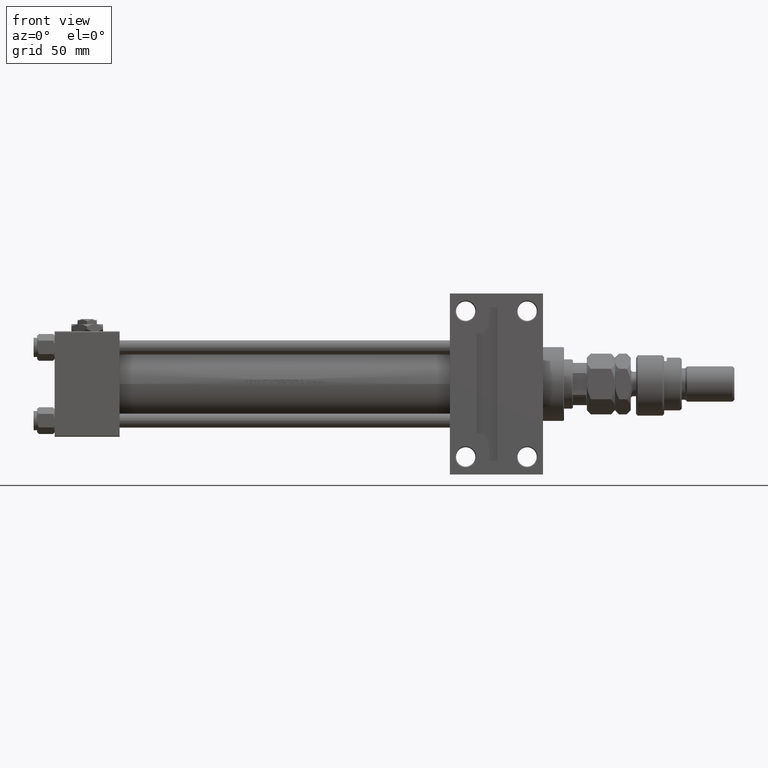
[diagram: clean part render]
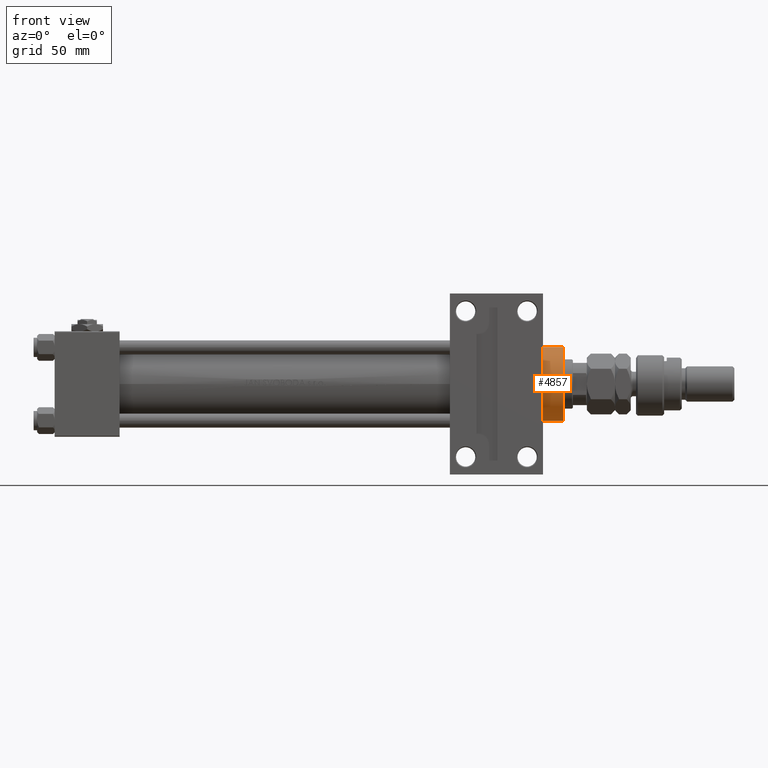
[diagram: same view with one face highlighted and labeled with its STEP entity id]
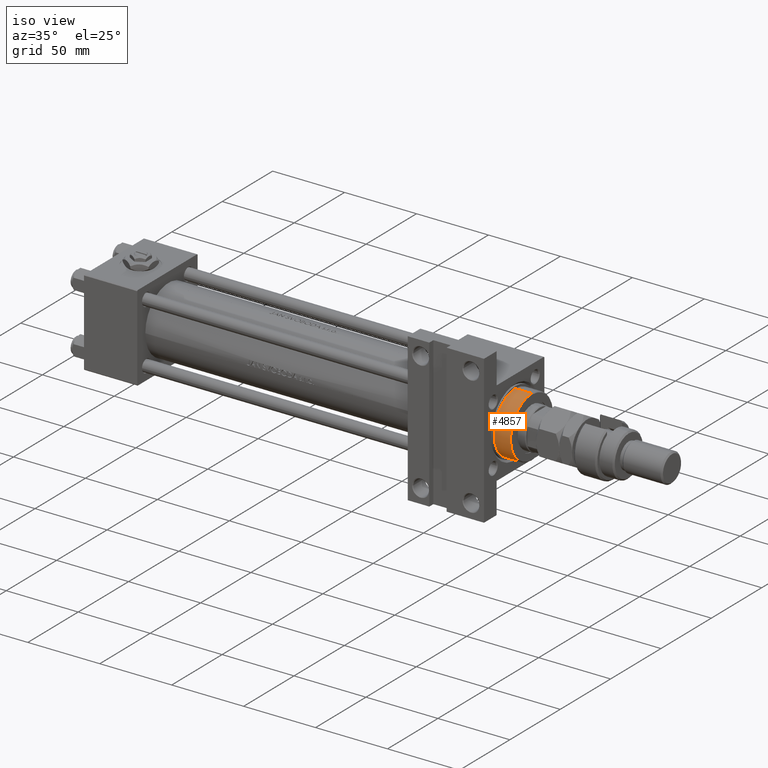
[diagram: same view with one face highlighted and labeled with its STEP entity id]
A machine part, front view. The second image highlights one B-rep face of the part: STEP entity #4857.
A second angle (iso view) of the same face is appended — the face is thin or edge-on in the first view.
In plain terms, the highlighted cylindrical surface (partial cylindrical patch) has radius 21 mm, axis along (-1, 0, 0).
Its self-contained STEP definition (entity closure, byte-faithful):
#3689 = LINE ( 'NONE', #45218, #34262 ) ;
#4857 = ADVANCED_FACE ( 'NONE', ( #13723 ), #30795, .T. ) ;
#7658 = AXIS2_PLACEMENT_3D ( 'NONE', #37893, #9106, #25417 ) ;
#9106 = DIRECTION ( 'NONE',  ( 0.000000000000000000, 0.000000000000000000, -1.000000000000000000 ) ) ;
#9157 = VECTOR ( 'NONE', #40585, 1000.000000000000000 ) ;
#9166 = VERTEX_POINT ( 'NONE', #24227 ) ;
#9676 = AXIS2_PLACEMENT_3D ( 'NONE', #39198, #34625, #51117 ) ;
#11036 = VERTEX_POINT ( 'NONE', #31046 ) ;
#13723 = FACE_OUTER_BOUND ( 'NONE', #27609, .T. ) ;
#23572 = VERTEX_POINT ( 'NONE', #45597 ) ;
#24227 = CARTESIAN_POINT ( 'NONE',  ( 21.00000000000000000, 2.571758278209441661E-15, 28.69999999999999929 ) ) ;
#25417 = DIRECTION ( 'NONE',  ( 1.000000000000000000, 0.000000000000000000, 0.000000000000000000 ) ) ;
#25869 = CARTESIAN_POINT ( 'NONE',  ( -21.00000000000000000, 0.000000000000000000, 40.19999999999998863 ) ) ;
#27609 = EDGE_LOOP ( 'NONE', ( #35540, #51258, #47776, #51622 ) ) ;
#28977 = EDGE_CURVE ( 'NONE', #52088, #23572, #3689, .T. ) ;
#30795 = CYLINDRICAL_SURFACE ( 'NONE', #9676, 21.00000000000000000 ) ;
#31046 = CARTESIAN_POINT ( 'NONE',  ( 21.00000000000000000, 2.571758278209441661E-15, 40.19999999999998863 ) ) ;
#32574 = DIRECTION ( 'NONE',  ( 0.000000000000000000, 0.000000000000000000, 1.000000000000000000 ) ) ;
#33623 = CIRCLE ( 'NONE', #45721, 21.00000000000000000 ) ;
#34262 = VECTOR ( 'NONE', #49266, 1000.000000000000000 ) ;
#34625 = DIRECTION ( 'NONE',  ( -0.000000000000000000, -0.000000000000000000, -1.000000000000000000 ) ) ;
#35540 = ORIENTED_EDGE ( 'NONE', *, *, #39980, .T. ) ;
#36653 = CARTESIAN_POINT ( 'NONE',  ( 0.000000000000000000, 0.000000000000000000, 28.69999999999999929 ) ) ;
#37085 = LINE ( 'NONE', #37356, #9157 ) ;
#37356 = CARTESIAN_POINT ( 'NONE',  ( 21.00000000000000000, 2.571758278209441661E-15, 40.70000000000000284 ) ) ;
#37893 = CARTESIAN_POINT ( 'NONE',  ( 0.000000000000000000, 0.000000000000000000, 40.19999999999998863 ) ) ;
#38654 = EDGE_CURVE ( 'NONE', #9166, #23572, #33623, .T. ) ;
#39198 = CARTESIAN_POINT ( 'NONE',  ( 0.000000000000000000, 0.000000000000000000, 40.70000000000000284 ) ) ;
#39980 = EDGE_CURVE ( 'NONE', #52088, #11036, #41452, .T. ) ;
#40585 = DIRECTION ( 'NONE',  ( -0.000000000000000000, -0.000000000000000000, -1.000000000000000000 ) ) ;
#41452 = CIRCLE ( 'NONE', #7658, 21.00000000000000000 ) ;
#45218 = CARTESIAN_POINT ( 'NONE',  ( -21.00000000000000000, 0.000000000000000000, 40.70000000000000284 ) ) ;
#45597 = CARTESIAN_POINT ( 'NONE',  ( -21.00000000000000000, 0.000000000000000000, 28.69999999999999929 ) ) ;
#45721 = AXIS2_PLACEMENT_3D ( 'NONE', #36653, #32574, #52878 ) ;
#46896 = EDGE_CURVE ( 'NONE', #11036, #9166, #37085, .T. ) ;
#47776 = ORIENTED_EDGE ( 'NONE', *, *, #38654, .T. ) ;
#49266 = DIRECTION ( 'NONE',  ( -0.000000000000000000, -0.000000000000000000, -1.000000000000000000 ) ) ;
#51117 = DIRECTION ( 'NONE',  ( -1.000000000000000000, 0.000000000000000000, 0.000000000000000000 ) ) ;
#51258 = ORIENTED_EDGE ( 'NONE', *, *, #46896, .T. ) ;
#51622 = ORIENTED_EDGE ( 'NONE', *, *, #28977, .F. ) ;
#52088 = VERTEX_POINT ( 'NONE', #25869 ) ;
#52878 = DIRECTION ( 'NONE',  ( 1.000000000000000000, 0.000000000000000000, 0.000000000000000000 ) ) ;